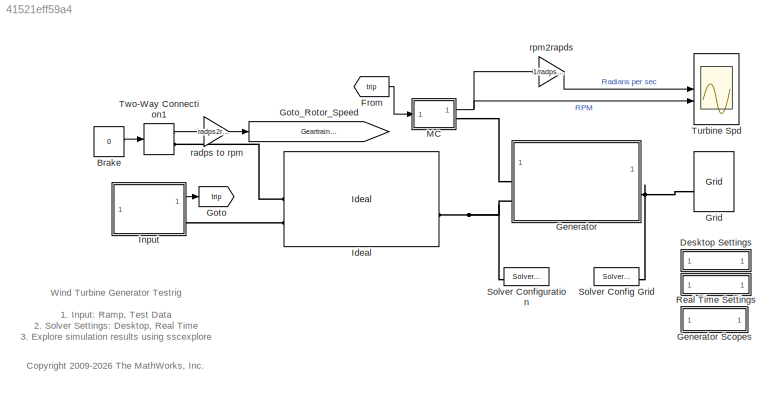
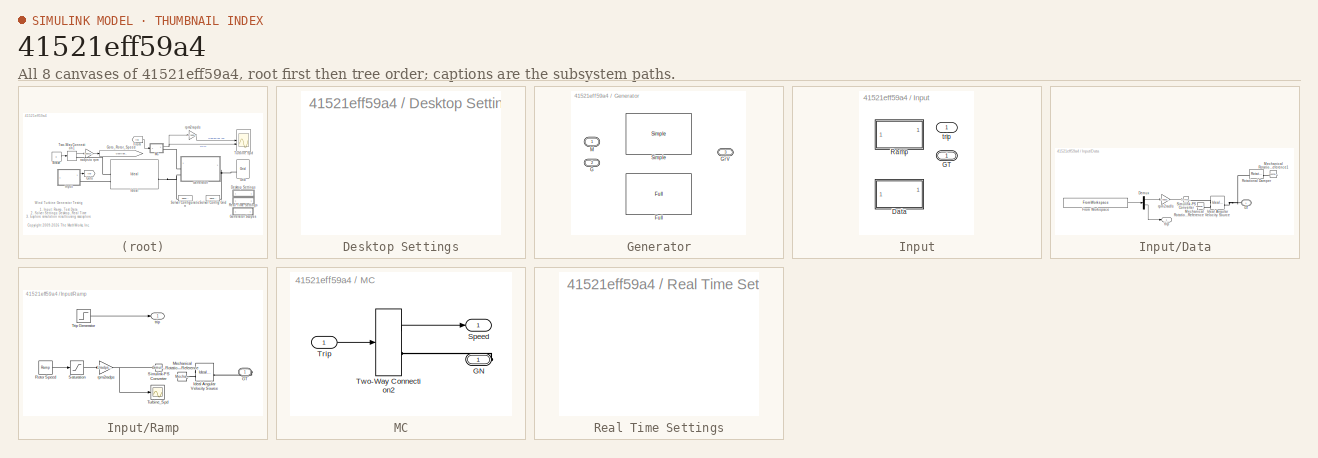
[diagram: thumbnail index - all 8 canvases of the model, root first then tree order]
MODEL slx_41521eff59a4
KIND model
CONFIG EnableMultiTasking = on
CONFIG MaxStep = 0.01
CONFIG PostLoadFcn = warning off ne_sli:simulator:input:FilteredInputs
CONFIG PreLoadFcn = load Generator_Test_DATA
CONFIG RelTol = 1e-5
CONFIG SolverName = ode23t
CONFIG StopTime = 15
BLOCK [Constant] Brake
  Value = 0
BLOCK [SubSystem] Desktop Settings
  OpenFcn = set_param(bdroot,'Solver','ODE23t','MaxStep','0.01');                            \n                           \n                                                      \nf    = Simulink.FindOptions('FollowLinks',0,'LookUnderMasks','none');\ntvar_solverBlock = Simulink.findBlocks(bdroot, 'Name','Solver Configuration','SubClassName', 'solver',f);\n                                                           ...<+448ch>
BLOCK [From] From
  GotoTag = trip
BLOCK [SubSystem] Generator
  AttributesFormatString = %<ActiveVariant>
  LabelModeActiveChoice = Full
  Variant = on
  VariantControlMode = label
BLOCK [SubSystem] Generator Scopes
  ReferencedSubsystem = Generator_Scopes
BLOCK [Reference] Generator/Full  REF=Generator_Lib/Full
  SourceBlock = Generator_Lib/Full
BLOCK [PMIOPort] Generator/G
  Port = 2
  Side = Left
BLOCK [PMIOPort] Generator/GrV
  Port = 3
  Side = Right
BLOCK [PMIOPort] Generator/M
  NameLocation = top
  Side = Left
  Tag = PMCPort
BLOCK [Reference] Generator/Simple  REF=Generator_Lib/Simple
  SourceBlock = Generator_Lib/Simple
BLOCK [Goto] Goto
  GotoTag = trip
  NameLocation = top
BLOCK [Goto] Goto_Rotor_Speed
  GotoTag = Geartrain_Input_Speed
  TagVisibility = global
BLOCK [Reference] Grid  REF=Generator_Lib/Grid
  SourceBlock = Generator_Lib/Grid
  SourceType = SubSystem
BLOCK [Reference] Ideal  REF=Geartrain_Lib/Ideal
  SourceBlock = Geartrain_Lib/Ideal
BLOCK [SubSystem] Input
  AttributesFormatString = %<LabelModeActiveChoice>
  LabelModeActiveChoice = Ramp
  Variant = on
  VariantControl = Ramp
  VariantControlMode = label
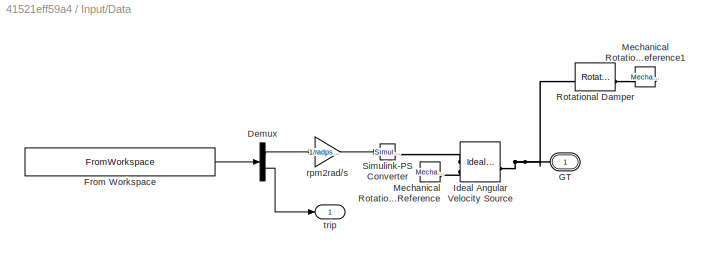
BLOCK [SubSystem] Input/Data
  VariantControl = Data
BLOCK [Demux] Input/Data/Demux
  Outputs = 2
BLOCK [FromWorkspace] Input/Data/From Workspace
  VariableName = Generator_Test_DATA
BLOCK [PMIOPort] Input/Data/GT
  NameLocation = top
  Side = Right
  Tag = PMCPort
BLOCK [Reference] Input/Data/Ideal Angular Velocity Source  REF=fl_lib/Mechanical/Mechanical Sources/Ideal Angular
Velocity Source
  SourceBlock = fl_lib/Mechanical/Mechanical Sources/Ideal Angular\nVelocity Source
  SourceType = Ideal Angular\nVelocity Source
BLOCK [Reference] Input/Data/Mechanical Rotational Reference  REF=fl_lib/Mechanical/Rotational Elements/Mechanical
Rotational Reference
  SourceBlock = fl_lib/Mechanical/Rotational Elements/Mechanical\nRotational Reference
  SourceType = Mechanical\nRotational Reference
BLOCK [Reference] Input/Data/Mechanical Rotational Reference1  REF=fl_lib/Mechanical/Rotational Elements/Mechanical
Rotational Reference
  NameLocation = top
  SourceBlock = fl_lib/Mechanical/Rotational Elements/Mechanical\nRotational Reference
  SourceType = Mechanical\nRotational Reference
BLOCK [Reference] Input/Data/Rotational Damper  REF=fl_lib/Mechanical/Rotational Elements/Rotational Damper
  SourceBlock = fl_lib/Mechanical/Rotational Elements/Rotational Damper
  SourceType = Rotational Damper
BLOCK [Reference] Input/Data/Simulink-PS Converter  REF=nesl_utility/Simulink-PS
Converter
  SourceBlock = nesl_utility/Simulink-PS\nConverter
  SourceType = Simulink-PS\nConverter
BLOCK [Gain] Input/Data/rpm2rad//s
  Gain = 1/radps2rpm
BLOCK [Outport] Input/Data/trip
  VectorParamsAs1DForOutWhenUnconnected = off
BLOCK [PMIOPort] Input/GT
  Side = Right
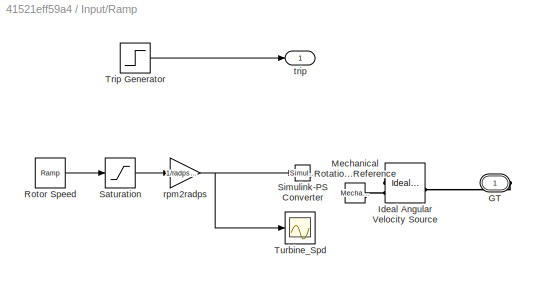
BLOCK [SubSystem] Input/Ramp
  VariantControl = Ramp
BLOCK [PMIOPort] Input/Ramp/GT
  NameLocation = top
  Side = Right
  Tag = PMCPort
BLOCK [Reference] Input/Ramp/Ideal Angular Velocity Source  REF=fl_lib/Mechanical/Mechanical Sources/Ideal Angular
Velocity Source
  SourceBlock = fl_lib/Mechanical/Mechanical Sources/Ideal Angular\nVelocity Source
  SourceType = Ideal Angular\nVelocity Source
BLOCK [Reference] Input/Ramp/Mechanical Rotational Reference  REF=fl_lib/Mechanical/Rotational Elements/Mechanical
Rotational Reference
  SourceBlock = fl_lib/Mechanical/Rotational Elements/Mechanical\nRotational Reference
  SourceType = Mechanical\nRotational Reference
BLOCK [Reference] Input/Ramp/Rotor Speed  REF=simulink/Sources/Ramp
  SourceBlock = simulink/Sources/Ramp
  SourceType = Ramp
BLOCK [Saturate] Input/Ramp/Saturation
  LowerLimit = 0
  UpperLimit = final_speed
BLOCK [Reference] Input/Ramp/Simulink-PS Converter  REF=nesl_utility/Simulink-PS
Converter
  SourceBlock = nesl_utility/Simulink-PS\nConverter
  SourceType = Simulink-PS\nConverter
BLOCK [Step] Input/Ramp/Trip Generator
  FinalValue = 0
  InitialValue = 1
  SampleTime = 0
  Time = 10
BLOCK [Scope] Input/Ramp/Turbine_Spd
  ActiveDisplayYMaximum = 1.5
  ActiveDisplayYMinimum = 0
  DataLoggingDecimateData = on
  DataLoggingDecimation = 1
  DataLoggingSaveFormat = Structure With Time
  Floating = off
  GraphicalSettings = {"GraphicalSettings":{"LegacySettings":true,"Style":{"AxesScalingProperties":{"ScaleAxesLimitsAtStop":false},"Style":{"AxesColor":"[0 0 0]","ChannelNames":[""],"ColorOrder":"[1 0.909803921568627 0.392156862745098;0.149019607843137 0.549019607843137 0.866666666666667;0.96078431372549 0.466666666666667 0.16078431372549;0.286274509803922 0.858823529411765 0.250980392156863;0.752941176470588 0.3607843...<+488ch>
  MultipleDisplayCache = [{"MaxYLimMag":10,"MaxYLimReal":1.5,"MinYLimMag":0,"MinYLimReal":0,"PlotAsMagnitudePhase":false,"ShowGrid":true,"ShowLegend":false,"Title":"%<SignalLabel>","YLabel":""}]
  NumInputPorts = 1
  WasSavedAsWebScope = on
  WindowPosition = [1030 539 324 239]
BLOCK [Gain] Input/Ramp/rpm2radps
  Gain = 1/radps2rpm
  NameLocation = top
BLOCK [Outport] Input/Ramp/trip
BLOCK [Outport] Input/trip
BLOCK [SubSystem] MC
  ShowPortLabels = none
BLOCK [PMIOPort] MC/GN
  Side = Right
BLOCK [Outport] MC/Speed
  VectorParamsAs1DForOutWhenUnconnected = off
BLOCK [Inport] MC/Trip
BLOCK [TwoWayConnection] MC/Two-Way Connection2
  NameLocation = top
BLOCK [SubSystem] Real Time Settings
  OpenFcn = tvar_Nonlinear_Iterations = '3';                                                                                                                                                                        \ntvar_StepSize = '0.01';                                                                                                                                                                                ...<+1459ch>
BLOCK [Reference] Solver Config Grid  REF=nesl_utility/Solver
Configuration
  SourceBlock = nesl_utility/Solver\nConfiguration
  SourceType = Solver\nConfiguration
BLOCK [Reference] Solver Configuration  REF=nesl_utility/Solver
Configuration
  SourceBlock = nesl_utility/Solver\nConfiguration
  SourceType = Solver\nConfiguration
BLOCK [Scope] Turbine Spd
  ActiveDisplayYMaximum = 184.65966
  ActiveDisplayYMinimum = -20.51774
  DataLoggingDecimation = 1
  DataLoggingSaveFormat = Structure With Time
  DataLoggingVariableName = ScopeData1
  Floating = off
  GraphicalSettings = {"GraphicalSettings":{"LegacySettings":true,"Style":{"AxesScalingProperties":{"ScaleAxesLimitsAtStop":false},"Style":{"AxesColor":"[0 0 0]","BackgroundColor":"[0.5 0.5 0.5]","ChannelNames":["",""],"ColorOrder":"[1 0.909803921568627 0.392156862745098;0.149019607843137 0.549019607843137 0.866666666666667;0.96078431372549 0.466666666666667 0.16078431372549;0.286274509803922 0.858823529411765 0.250980...<+820ch>
  LayoutDimensionsString = [2 1]
  MultipleDisplayCache = [{"MaxYLimMag":184.65966,"MaxYLimReal":184.65966,"MinYLimMag":0,"MinYLimReal":-20.51774,"PlotAsMagnitudePhase":false,"ShowGrid":true,"ShowLegend":false,"Title":"%<SignalLabel>","YLabel":""},{"MaxYLimMag":10,"MaxYLimReal":1763.36988,"MinYLimMag":0,"MinYLimReal":-195.92999,"PlotAsMagnitudePhase":false,"ShowGrid":true,"ShowLegend":false,"Title":"%<SignalLabel>","YLabel":""}]
  NameLocation = top
  NumInputPorts = 2
  WasSavedAsWebScope = on
  WindowPosition = [1026 688 324 306]
BLOCK [TwoWayConnection] Two-Way Connection1
BLOCK [Gain] radps to rpm
  Gain = radps2rpm
  NameLocation = top
BLOCK [Gain] rpm2rapds
  Gain = 1/radps2rpm
  NameLocation = top
ANNOTATION (root): 1. Input: Ramp , Test Data 2. Solver Settings: Desktop , Real Time 3. Explore simulation results using sscexplore
ANNOTATION (root): <copyright redacted>
ANNOTATION (root): Wind Turbine Generator Testrig
LINE Brake:1 -> Two-Way Connection1:1
LINE From:1 -> MC:1
LINE Input/Data/Demux:1 -> Input/Data/rpm2rad//s:1
LINE Input/Data/Demux:2 -> Input/Data/trip:1
LINE Input/Data/From Workspace:1 -> Input/Data/Demux:1
LINE Input/Data/rpm2rad//s:1 -> Input/Data/Simulink-PS Converter:1
LINE Input/Ramp/Rotor Speed:1 -> Input/Ramp/Saturation:1
LINE Input/Ramp/Saturation:1 -> Input/Ramp/rpm2radps:1
LINE Input/Ramp/Trip Generator:1 -> Input/Ramp/trip:1
NET Input/Ramp/rpm2radps:1 -> Input/Ramp/Simulink-PS Converter:1, Input/Ramp/Turbine_Spd:1
LINE Input:1 -> Goto:1
LINE MC/Trip:1 -> MC/Two-Way Connection2:1
LINE MC/Two-Way Connection2:1 -> MC/Speed:1
NET MC:1 -> Turbine Spd:2, rpm2rapds:1
LINE Two-Way Connection1:1 -> radps to rpm:1
LINE radps to rpm:1 -> Goto_Rotor_Speed:1
LINE rpm2rapds:1 -> Turbine Spd:1
PLINE Generator:LConn1 -- MC:RConn1
PNET net1: Generator:LConn2 -- Ideal:RConn1 -- Solver Configuration:RConn1
PNET net2: Generator:RConn1 -- Grid:RConn1 -- Solver Config Grid:RConn1
PLINE Ideal:LConn1 -- Two-Way Connection1:RConn1
PLINE Ideal:LConn2 -- Input:RConn1
PNET net3: Input/Data/GT:RConn1 -- Input/Data/Ideal Angular Velocity Source:LConn1 -- Input/Data/Rotational Damper:LConn1
PLINE Input/Data/Ideal Angular Velocity Source:RConn1 -- Input/Data/Simulink-PS Converter:RConn1
PLINE Input/Data/Ideal Angular Velocity Source:RConn2 -- Input/Data/Mechanical Rotational Reference:LConn1
PLINE Input/Data/Mechanical Rotational Reference1:LConn1 -- Input/Data/Rotational Damper:RConn1
PLINE Input/Ramp/GT:RConn1 -- Input/Ramp/Ideal Angular Velocity Source:LConn1
PLINE Input/Ramp/Ideal Angular Velocity Source:RConn1 -- Input/Ramp/Simulink-PS Converter:RConn1
PLINE Input/Ramp/Ideal Angular Velocity Source:RConn2 -- Input/Ramp/Mechanical Rotational Reference:LConn1
PLINE MC/GN:RConn1 -- MC/Two-Way Connection2:RConn1
note: NET lines group one-source signal fan-out (src -> all destinations, sorted); 1:1 wires keep LINE; PNET lines group multi-terminal physical nets as a canonical sorted terminal list (undirected conserving connections); 2-terminal nets keep the pairwise PLINE form
